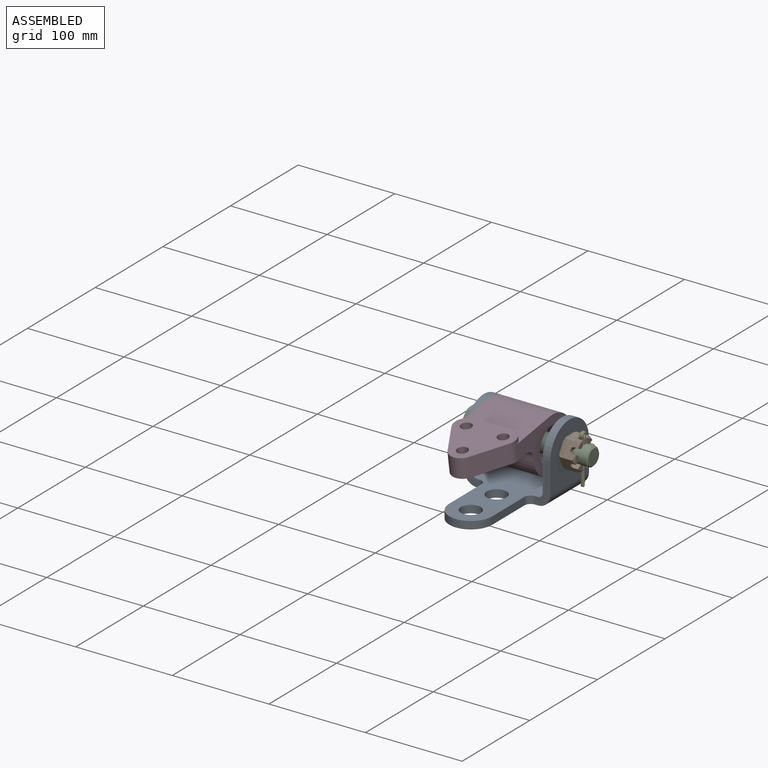
[diagram: assembled view]
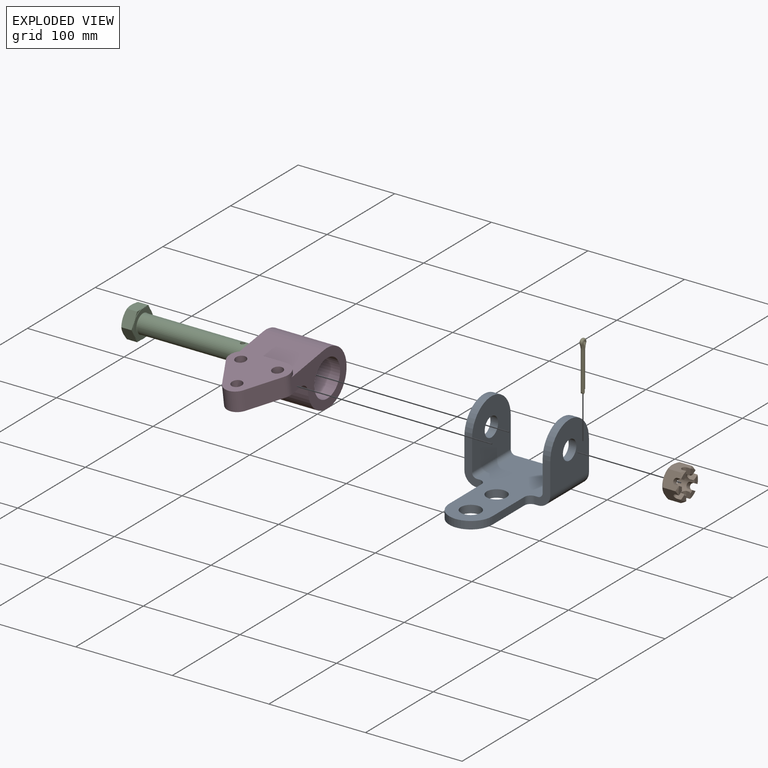
[diagram: exploded view]
GUIDED TOUR — MATED ASSEMBLY (Onshape document 77da3625cfaab442e1c85830, AutoMate assembly 77da3625cfaab442e1c85830_584f02aa23a0c990ece7a7c4_d7a465f249703bda8ea176b5_default)

This assembly has 5 components, labeled P0..P4 below (a component is one placed occurrence of a part; the same part can appear more than once), held together by 4 mates. A mate is a constraint between two components; its type names the relative motion it leaves free:
  FASTENED — locks the two components together rigidly (no relative motion),
  REVOLUTE — leaves rotation about the listed axis free (a hinge).
Axis/direction vectors are unit vectors and 'through' points are millimeter coordinates, both in the assembly's world frame.

MATES
  1. FASTENED "Fastened 1": P0 <-> P2, direction (-1.000, 0.000, 0.000) through (-114.11, -19.45, 6.69) mm
  2. REVOLUTE "Revolute 1": P3 <-> P0, axis (1.000, 0.000, 0.000) through (-106.18, -19.45, 6.69) mm
  3. FASTENED "Fastened 2": P1 <-> P0, direction (1.000, 0.000, 0.000) through (-25.21, -19.45, 6.69) mm
  4. FASTENED "Fastened 3": P4 <-> P2, direction (0.000, 0.000, -1.000) through (-11.43, -19.45, 16.33) mm

ASSEMBLY ORDER
  1. P0 — the base component [order verified]
  2. P3 [order verified]
  3. P1 [order verified]
  4. P2 [order verified]
  5. P4 [order verified]
Order-tag legend:
  [order verified] — this step's position reverses a verified removal order: the component was checked to insert without passing through the ones already placed.

Of the 5 components, 2 carry the full construction recipe — the FeatureScript program that regenerates the part's solid from scratch; the rest are supplied as boundary geometry only.
Each toured component is shown spotlighted twice — in the assembled view, then in the exploded view, where a leader line traces a displaced component back to its assembled socket (saturated green if recipe-attached, orange if geometry-only; every other component desaturated gray) — followed by its recipe or geometry summary and the mates that hold it.
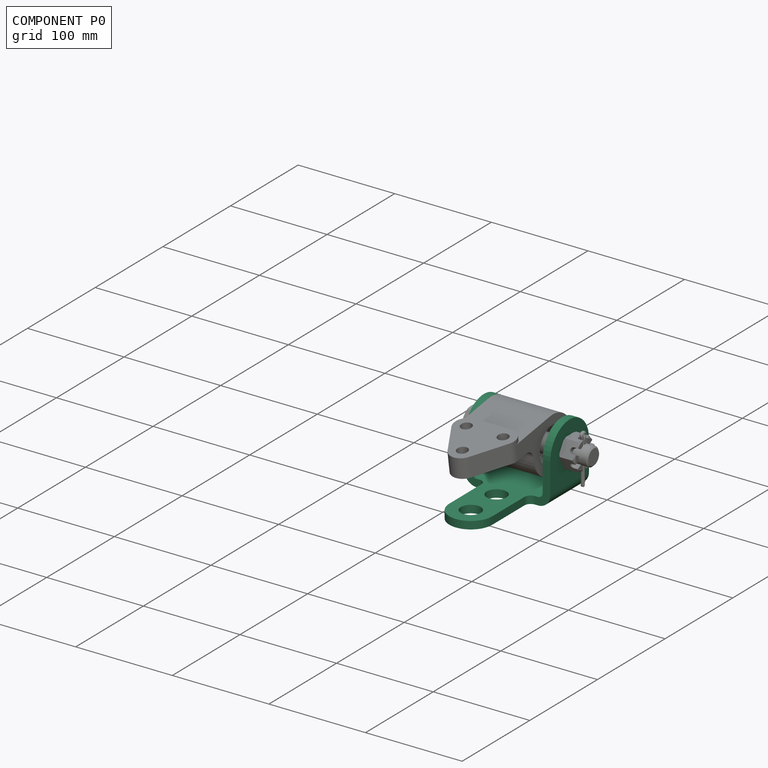
[diagram: component P0 — assembled]
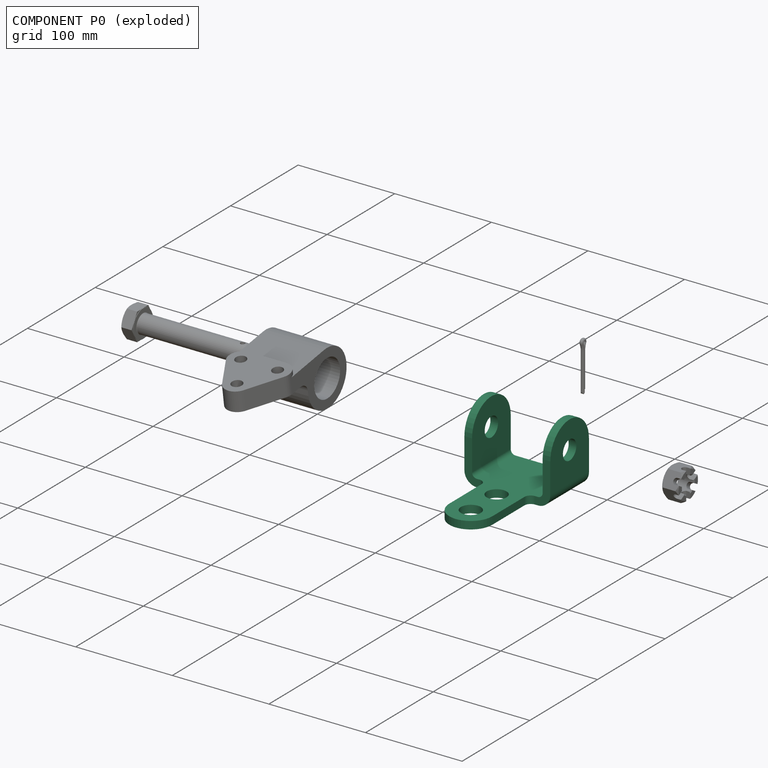
[diagram: component P0 — exploded]
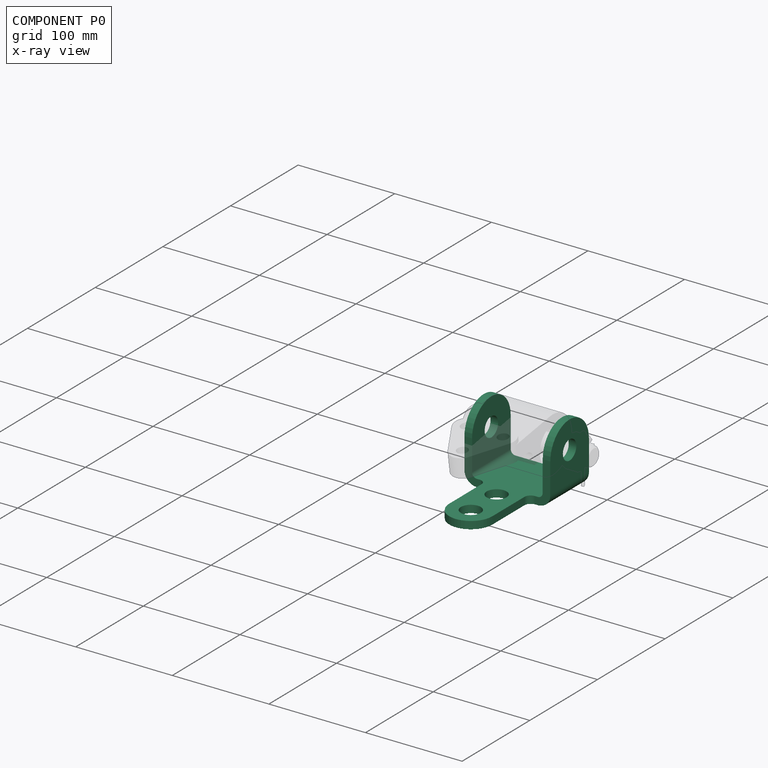
[diagram: component P0 — x-ray view]
COMPONENT P0 — recipe-attached (CADFS 00126189, mesh-verified: the recipe's output STEP matches this component's geometry to below the mesh-comparison resolution (tessellation chordal tolerance ~0.264 mm)).
Held by: FASTENED mate "Fastened 1" to P2; REVOLUTE mate "Revolute 1" to P3; FASTENED mate "Fastened 2" to P1.
Construction recipe (FeatureScript — the CAD program that rebuilds this solid; sketch coordinates are in the units given by the * unit suffixes, e.g. mm):

FeatureScript 1511;
import(path : "onshape/std/geometry.fs", version : "1511.0");
import(path : "onshape/std/common.fs", version : "1511.0");
const mm = millimeter;
const VERTEX = EntityType.VERTEX;
const EDGE = EntityType.EDGE;
const FACE = EntityType.FACE;
const BODY = EntityType.BODY;
function v(x, y){return vector(x, y);}
function OD(order){return orderDisambiguation(order);}
function OSD(set){return originalSetDisambiguation(set);}
function TD(topology){return topologyDisambiguation(topology);}
function TDD(query){return trueDependencyDisambiguation(query);}
function sQuery(a, b, c) {return sketchEntityQuery(a, b, c);}

annotation { "Feature Type Name" : "Feature", "Feature Type Description" : "" }
export const myFeature = defineFeature(function(context is Context, id is Id, definition is map)
    precondition{}
    {
        {
            var Q0;
            Q0=qCreatedBy(makeId("Front.planeOp"),FACE);
            var sketch = newSketch(context, id + "F0", { "sketchPlane" : qUnion([Q0])});
            skLineSegment(sketch, "E0", {"start": v(0, 0) * mm, "end": v(0, 44.45) * mm});
            skLineSegment(sketch, "E1", {"start": v(57.15, 44.45) * mm, "end": v(57.15, 0) * mm});
            skLineSegment(sketch, "E2", {"start": v(0, 0) * mm, "end": v(133.35, 0) * mm});
            skLineSegment(sketch, "E3", {"start": v(133.35, 0) * mm, "end": v(133.35, 7.94) * mm});
            skLineSegment(sketch, "E4", {"start": v(133.35, 7.94) * mm, "end": v(57.15, 7.94) * mm});
            skArc(sketch, "E5", {"start": v(57.15, 44.45) * mm, "mid": v(28.58, 73.03) * mm, "end": v(0, 44.45) * mm});
            skCircle(sketch, "E6", {"center": v(28.58, 44.45) * mm, "radius": 9.92 * mm});
            skSolve(sketch);
        }
        {
            var Q0;
            Q0 = qSketchRegion(id + "F0", true);
            extrude(context, id + "F1", {"entities" : qUnion([Q0]), "depth" : 88.9 * mm});
        }
        {
            var Q0;
            Q0=makeQuery(id+"F1.opExtrude","SWEPT_FACE",FACE,{"disambiguationData":[OSD([sQuery(id+"F0.wireOp",EDGE,"E4")])]});
            var sketch = newSketch(context, id + "F2", { "sketchPlane" : qUnion([Q0])});
            skCircle(sketch, "E7", {"center": v(73.03, -44.45) * mm, "radius": 10.33 * mm});
            skCircle(sketch, "E8", {"center": v(111.12, -44.45) * mm, "radius": 10.33 * mm});
            skLineSegment(sketch, "E9", {"start": v(57.15, 0) * mm, "end": v(57.15, -15.88) * mm});
            skLineSegment(sketch, "E10", {"start": v(57.15, -88.9) * mm, "end": v(57.15, -73.02) * mm});
            skArc(sketch, "E11", {"start": v(63.5, -66.67) * mm, "mid": v(59, -68.53) * mm, "end": v(57.15, -73.02) * mm});
            skArc(sketch, "E12", {"start": v(57.15, -15.88) * mm, "mid": v(59, -20.37) * mm, "end": v(63.5, -22.23) * mm});
            skLineSegment(sketch, "E13", {"start": v(63.5, -22.23) * mm, "end": v(111.13, -22.23) * mm});
            skLineSegment(sketch, "E14", {"start": v(63.5, -66.67) * mm, "end": v(111.13, -66.67) * mm});
            skArc(sketch, "E15", {"start": v(111.13, -66.68) * mm, "mid": v(133.35, -44.45) * mm, "end": v(111.13, -22.23) * mm});
            skLineSegment(sketch, "E16", {"start": v(57.15, 0) * mm, "end": v(133.35, 0) * mm});
            skLineSegment(sketch, "E17", {"start": v(57.15, -88.9) * mm, "end": v(133.35, -88.9) * mm});
            skLineSegment(sketch, "E18", {"start": v(57.15, -44.45) * mm, "end": v(194.7, -44.45) * mm, "construction": true});
            skPoint(sketch, "E18.endSnap0", {"position": v(133.35, -44.45) * mm});
            skLineSegment(sketch, "E19", {"start": v(133.35, 0) * mm, "end": v(133.35, -88.9) * mm});
            skSolve(sketch);
        }
        {
            var Q0;
            Q0 = qSketchRegion(id + "F2", true);
            extrude(context, id + "F3", {"entities" : qUnion([Q0]), "operationType" : NewBodyOperationType.REMOVE, "endBound" : BoundingType.THROUGH_ALL, "oppositeDirection" : true, "depth" : 25.4 * mm});
        }
        {
            var Q0;
            Q0=qCreatedBy(makeId("Right.planeOp"),FACE);
            var sketch = newSketch(context, id + "F4", { "sketchPlane" : qUnion([Q0])});
            skLineSegment(sketch, "E20", {"start": v(-80.96, 73.03) * mm, "end": v(-80.96, 12.7) * mm});
            skLineSegment(sketch, "E21", {"start": v(-76.2, 7.94) * mm, "end": v(-12.7, 7.94) * mm});
            skLineSegment(sketch, "E22", {"start": v(-7.94, 12.7) * mm, "end": v(-7.94, 73.03) * mm});
            skArc(sketch, "E23", {"start": v(-80.96, 12.7) * mm, "mid": v(-79.57, 9.33) * mm, "end": v(-76.2, 7.94) * mm});
            skArc(sketch, "E24", {"start": v(-12.7, 7.94) * mm, "mid": v(-9.33, 9.33) * mm, "end": v(-7.94, 12.7) * mm});
            skArc(sketch, "E25", {"start": v(-88.9, 12.7) * mm, "mid": v(-85.18, 3.72) * mm, "end": v(-76.2, 0) * mm});
            skLineSegment(sketch, "E26", {"start": v(-88.9, 12.7) * mm, "end": v(-88.9, 0) * mm});
            skLineSegment(sketch, "E27", {"start": v(-88.9, 0) * mm, "end": v(-76.2, 0) * mm});
            skLineSegment(sketch, "E28", {"start": v(-80.96, 73.03) * mm, "end": v(-7.94, 73.03) * mm});
            skLineSegment(sketch, "E29", {"start": v(0, 0) * mm, "end": v(0, 12.7) * mm});
            skLineSegment(sketch, "E30", {"start": v(0, 0) * mm, "end": v(-12.7, 0) * mm});
            skArc(sketch, "E31", {"start": v(-12.7, 0) * mm, "mid": v(-3.72, 3.72) * mm, "end": v(0, 12.7) * mm});
            skLineSegment(sketch, "E32", {"start": v(-44.45, 73.03) * mm, "end": v(-44.45, 0) * mm, "construction": true});
            skPoint(sketch, "E32.endSnap0", {"position": v(-44.45, 7.94) * mm});
            skSolve(sketch);
        }
        {
            var Q0;
            Q0 = qSketchRegion(id + "F4", true);
            extrude(context, id + "F5", {"entities" : qUnion([Q0]), "operationType" : NewBodyOperationType.REMOVE, "endBound" : BoundingType.THROUGH_ALL, "depth" : 25.4 * mm});
        }
    });
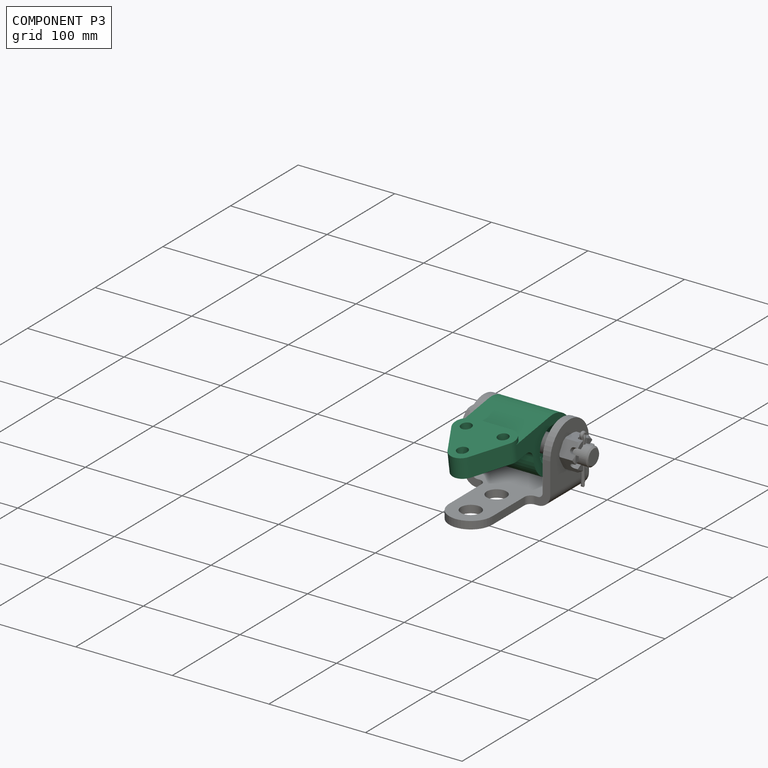
[diagram: component P3 — assembled]
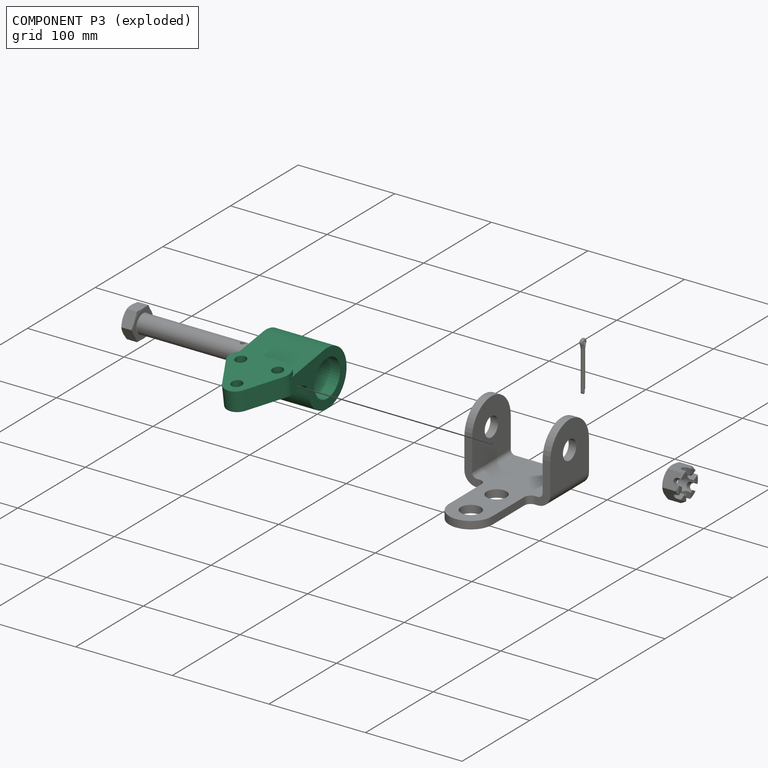
[diagram: component P3 — exploded]
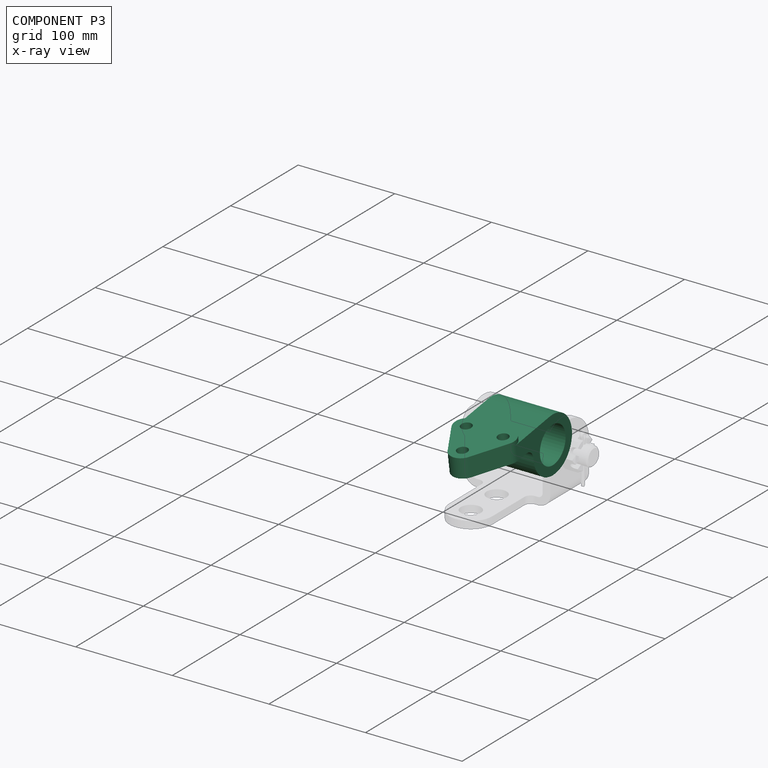
[diagram: component P3 — x-ray view]
COMPONENT P3 — recipe-attached (CADFS 00126190, mesh-verified: the recipe's output STEP matches this component's geometry to below the mesh-comparison resolution (tessellation chordal tolerance ~0.23 mm)).
Held by: REVOLUTE mate "Revolute 1" to P0.
Construction recipe (FeatureScript — the CAD program that rebuilds this solid; sketch coordinates are in the units given by the * unit suffixes, e.g. mm):

FeatureScript 1511;
import(path : "onshape/std/geometry.fs", version : "1511.0");
import(path : "onshape/std/common.fs", version : "1511.0");
const mm = millimeter;
const VERTEX = EntityType.VERTEX;
const EDGE = EntityType.EDGE;
const FACE = EntityType.FACE;
const BODY = EntityType.BODY;
function v(x, y){return vector(x, y);}
function OD(order){return orderDisambiguation(order);}
function OSD(set){return originalSetDisambiguation(set);}
function TD(topology){return topologyDisambiguation(topology);}
function TDD(query){return trueDependencyDisambiguation(query);}
function sQuery(a, b, c) {return sketchEntityQuery(a, b, c);}

annotation { "Feature Type Name" : "Feature", "Feature Type Description" : "" }
export const myFeature = defineFeature(function(context is Context, id is Id, definition is map)
    precondition{}
    {
        {
            var Q0;
            Q0=qCreatedBy(makeId("Front.planeOp"),FACE);
            var sketch = newSketch(context, id + "F0", { "sketchPlane" : qUnion([Q0])});
            skArc(sketch, "E0", {"start": v(0, 28.58) * mm, "mid": v(-19.35, -21.03) * mm, "end": v(28.48, 2.38) * mm});
            skArc(sketch, "E1", {"start": v(37.97, 12.7) * mm, "mid": v(30.96, 9.62) * mm, "end": v(28.48, 2.38) * mm});
            skLineSegment(sketch, "E2", {"start": v(0, 28.58) * mm, "end": v(38.1, 28.58) * mm});
            skCircle(sketch, "E3", {"center": v(0, 0) * mm, "radius": 19.05 * mm});
            skLineSegment(sketch, "E4", {"start": v(38.1, 28.58) * mm, "end": v(38.1, 33.35) * mm});
            skLineSegment(sketch, "E5", {"start": v(38.1, 33.35) * mm, "end": v(96.85, 33.35) * mm});
            skLineSegment(sketch, "E6", {"start": v(96.85, 33.35) * mm, "end": v(96.85, 12.7) * mm});
            skLineSegment(sketch, "E7", {"start": v(37.97, 12.7) * mm, "end": v(96.85, 12.7) * mm});
            skLineSegment(sketch, "E8", {"start": v(19.74, -20.66) * mm, "end": v(69.85, 12.7) * mm, "construction": true});
            skLineSegment(sketch, "E9", {"start": v(84.15, 12.7) * mm, "end": v(84.15, 33.35) * mm, "construction": true});
            skLineSegment(sketch, "E10", {"start": v(50.8, 12.7) * mm, "end": v(50.8, 33.35) * mm, "construction": true});
            skSolve(sketch);
        }
        {
            var Q0;
            Q0 = qSketchRegion(id + "F0", true);
            extrude(context, id + "F1", {"entities" : qUnion([Q0]), "depth" : 63.5 * mm});
        }
        {
            var Q0;
            Q0=makeQuery(id+"F1.opExtrude","SWEPT_FACE",FACE,{"disambiguationData":[OSD([sQuery(id+"F0.wireOp",EDGE,"E5")])]});
            var sketch = newSketch(context, id + "F2", { "sketchPlane" : qUnion([Q0])});
            skCircle(sketch, "E11", {"center": v(50.8, -12.7) * mm, "radius": 5.56 * mm});
            skCircle(sketch, "E12", {"center": v(50.8, -50.8) * mm, "radius": 5.56 * mm});
            skCircle(sketch, "E13", {"center": v(84.15, -31.75) * mm, "radius": 5.56 * mm});
            skLineSegment(sketch, "E14", {"start": v(96.85, -31.75) * mm, "end": v(-50.82, -31.75) * mm, "construction": true});
            skPoint(sketch, "E14.endSnap0", {"position": v(96.85, -31.75) * mm});
            skLineSegment(sketch, "E15", {"start": v(84.15, -87.19) * mm, "end": v(84.15, 6.07) * mm, "construction": true});
            skLineSegment(sketch, "E16", {"start": v(33.35, -98.65) * mm, "end": v(33.35, 81.53) * mm, "construction": true});
            skLineSegment(sketch, "E17", {"start": v(50.8, 11.94) * mm, "end": v(50.8, -91.8) * mm, "construction": true});
            skArc(sketch, "E18", {"start": v(90.45, -42.78) * mm, "mid": v(96.85, -31.75) * mm, "end": v(90.45, -20.72) * mm});
            skArc(sketch, "E19", {"start": v(57.1, -1.67) * mm, "mid": v(44.42, -1.72) * mm, "end": v(38.1, -12.7) * mm});
            skArc(sketch, "E20", {"start": v(38.1, -50.8) * mm, "mid": v(44.42, -61.78) * mm, "end": v(57.1, -61.83) * mm});
            skLineSegment(sketch, "E21", {"start": v(57.1, -1.67) * mm, "end": v(90.45, -20.72) * mm});
            skLineSegment(sketch, "E22", {"start": v(90.45, -42.78) * mm, "end": v(57.1, -61.83) * mm});
            skLineSegment(sketch, "E23", {"start": v(38.1, -50.8) * mm, "end": v(38.1, -12.7) * mm});
            skSolve(sketch);
        }
        {
            var Q0;
            Q0=makeQuery(id+"F2.imprint","IMPRINT",FACE,{"disambiguationData":[TD([[makeQuery(id+"F2.imprint","IMPRINT",EDGE,{"derivedFrom":sQuery(id+"F2.wireOp",EDGE,"E12")}),1.0]])]});
            var Q1;
            Q1=makeQuery(id+"F2.imprint","IMPRINT",FACE,{"disambiguationData":[TD([[makeQuery(id+"F2.imprint","IMPRINT",EDGE,{"derivedFrom":sQuery(id+"F2.wireOp",EDGE,"E11")}),1.0]])]});
            var Q2;
            Q2=makeQuery(id+"F2.imprint","IMPRINT",FACE,{"disambiguationData":[TD([[makeQuery(id+"F2.imprint","IMPRINT",EDGE,{"derivedFrom":sQuery(id+"F2.wireOp",EDGE,"E13")}),1.0]])]});
            extrude(context, id + "F3", {"entities" : qUnion([Q0, Q1, Q2]), "operationType" : NewBodyOperationType.REMOVE, "endBound" : BoundingType.THROUGH_ALL, "oppositeDirection" : true, "depth" : 25.4 * mm});
        }
        {
            var Q0;
            {var subQ0=sQuery(id+"F2.wireOp",EDGE,"E19");var subQ1=sQuery(id+"F0.wireOp",EDGE,"E5");var subQ4=makeQuery(id+"F1.opExtrude","CAP_EDGE",EDGE,{"disambiguationData":[OSD([subQ1])],"isStart":true});var subQ5=makeQuery(id+"F2.imprint","INTERSECT",VERTEX,{"derivedFrom":[subQ4,subQ0]});Q0=makeQuery(id+"F2.imprint","IMPRINT",FACE,{"disambiguationData":[TD([[makeQuery(id+"F2.imprint","IMPRINT",EDGE,{"disambiguationData":[TD([[subQ5,1.0]])],"derivedFrom":subQ4}),-1.0]])]});}
            var Q1;
            {var subQ0=sQuery(id+"F2.wireOp",EDGE,"E20");var subQ1=sQuery(id+"F0.wireOp",EDGE,"E5");var subQ4=makeQuery(id+"F1.opExtrude","CAP_EDGE",EDGE,{"disambiguationData":[OSD([subQ1])],"isStart":false});var subQ5=makeQuery(id+"F2.imprint","INTERSECT",VERTEX,{"derivedFrom":[subQ4,subQ0]});Q1=makeQuery(id+"F2.imprint","IMPRINT",FACE,{"disambiguationData":[TD([[makeQuery(id+"F2.imprint","IMPRINT",EDGE,{"disambiguationData":[TD([[subQ5,1.0]])],"derivedFrom":subQ4}),1.0]])]});}
            extrude(context, id + "F4", {"entities" : qUnion([Q0, Q1]), "operationType" : NewBodyOperationType.REMOVE, "oppositeDirection" : true, "depth" : 4.78 * mm});
        }
        {
            var Q0;
            {var subQ6=sQuery(id+"F2.wireOp",EDGE,"E22");Q0=makeQuery(id+"F2.imprint","IMPRINT",FACE,{"disambiguationData":[TD([[makeQuery(id+"F2.imprint","IMPRINT",EDGE,{"derivedFrom":subQ6}),1.0]])]});}
            var Q1;
            {var subQ0=sQuery(id+"F2.wireOp",EDGE,"E21");Q1=makeQuery(id+"F2.imprint","IMPRINT",FACE,{"disambiguationData":[TD([[makeQuery(id+"F2.imprint","IMPRINT",EDGE,{"derivedFrom":subQ0}),1.0]])]});}
            extrude(context, id + "F5", {"entities" : qUnion([Q0, Q1]), "operationType" : NewBodyOperationType.REMOVE, "endBound" : BoundingType.THROUGH_ALL, "oppositeDirection" : true, "depth" : 25.4 * mm});
        }
    });
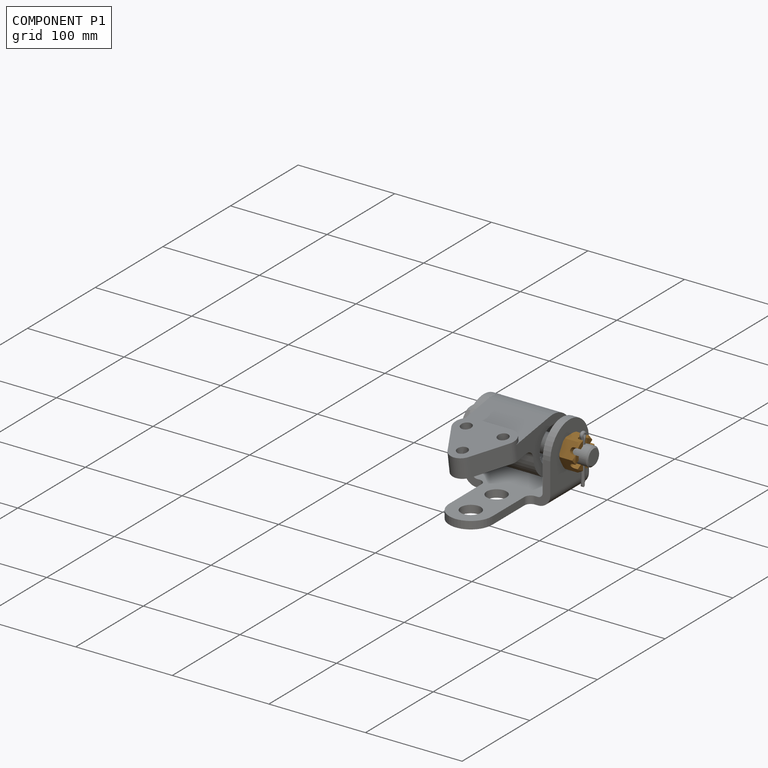
[diagram: component P1 — assembled]
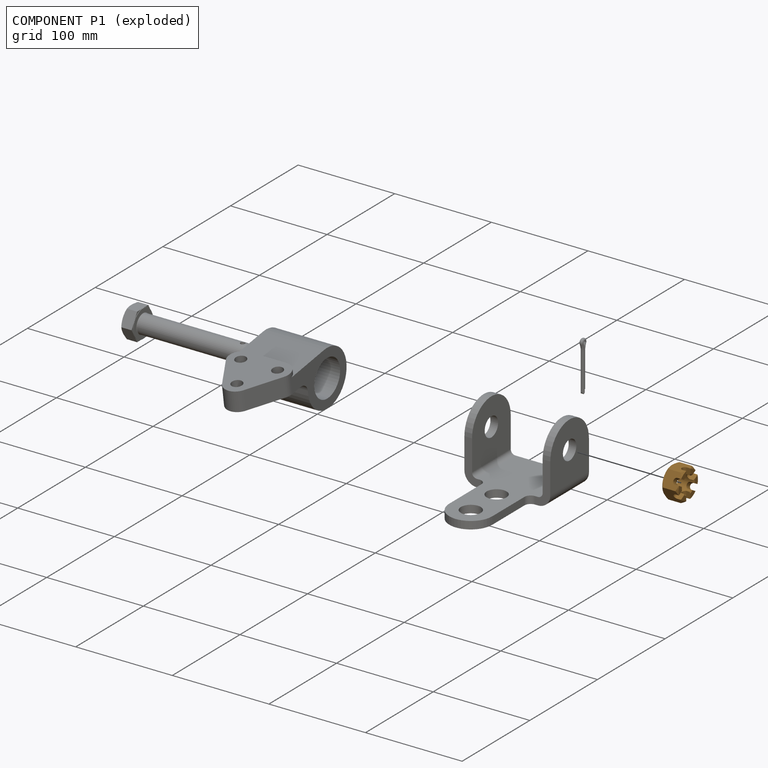
[diagram: component P1 — exploded]
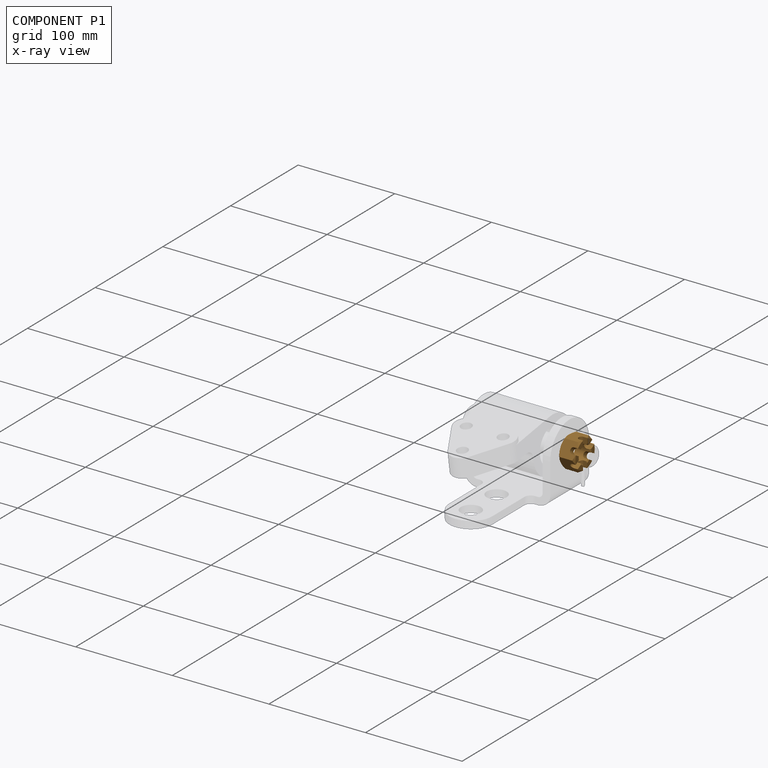
[diagram: component P1 — x-ray view]
COMPONENT P1 — geometry summary (no construction recipe available for this part):
  bounding box: 33.0 x 33.0 x 16.9 mm
  B-rep topology: 1 solid, 64 faces, 364 edges
  volume: 6784 mm^3 (37% of its bounding box)
  symmetry: 6-fold rotationally symmetric about the z axis; mirror-symmetric across its x mid-plane, y mid-plane
Held by: FASTENED mate "Fastened 2" to P0.
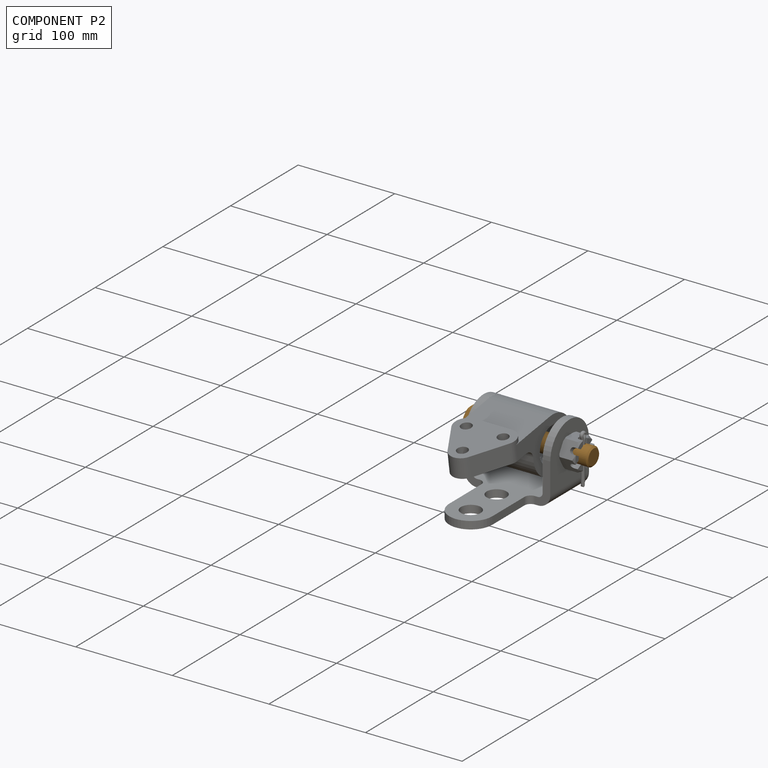
[diagram: component P2 — assembled]
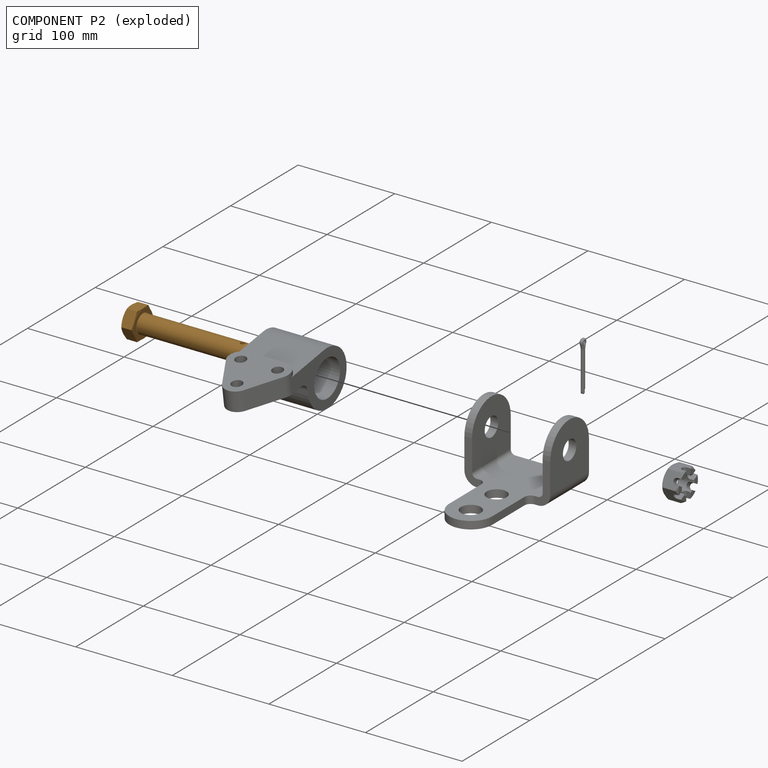
[diagram: component P2 — exploded]
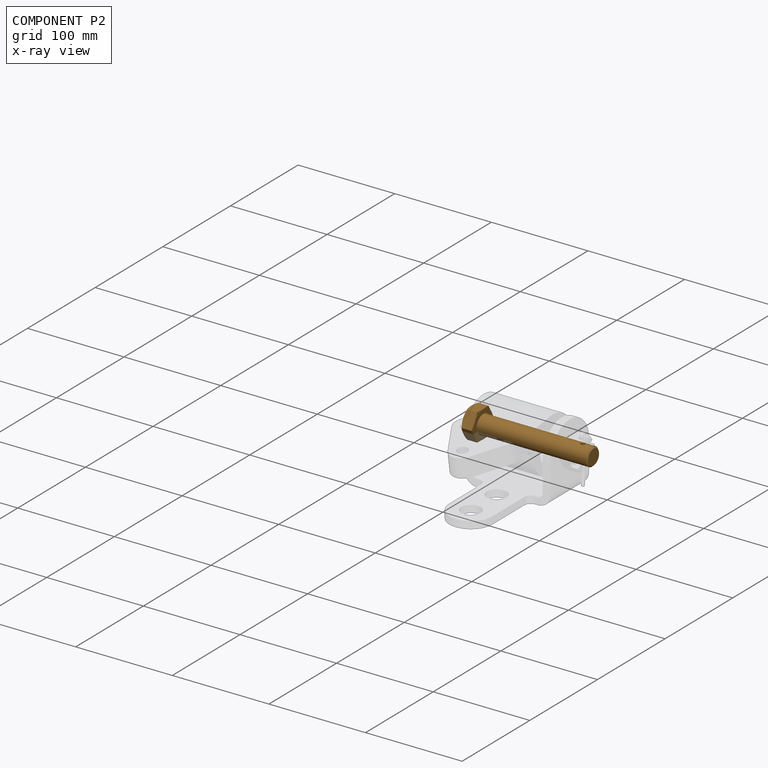
[diagram: component P2 — x-ray view]
COMPONENT P2 — geometry summary (no construction recipe available for this part):
  bounding box: 126.6 x 33.0 x 33.0 mm
  B-rep topology: 1 solid, 26 faces, 114 edges
  volume: 40801 mm^3 (30% of its bounding box)
  symmetry: 2-fold rotationally symmetric about the x axis; mirror-symmetric across its y mid-plane, z mid-plane
Held by: FASTENED mate "Fastened 1" to P0; FASTENED mate "Fastened 3" to P4.
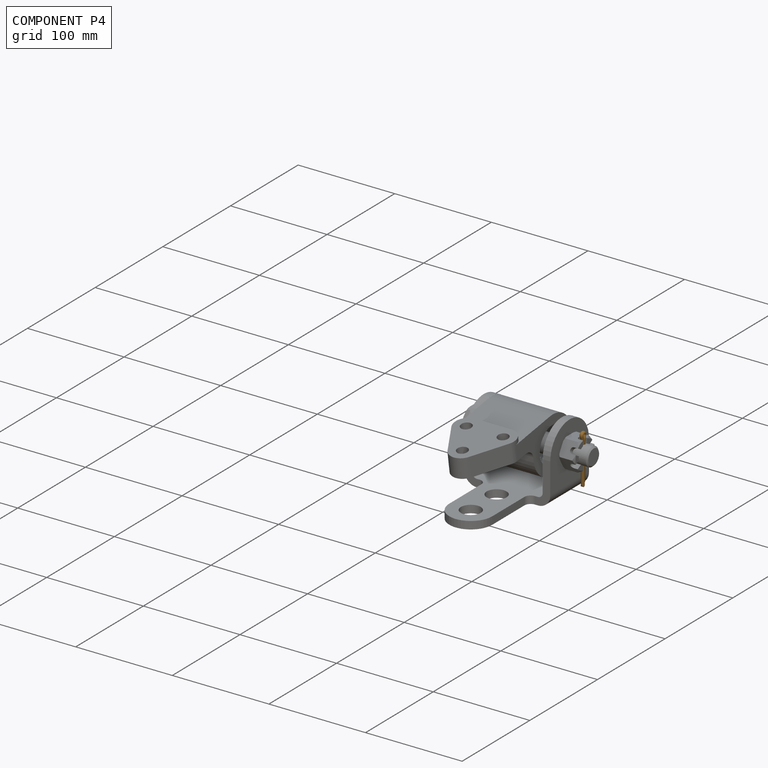
[diagram: component P4 — assembled]
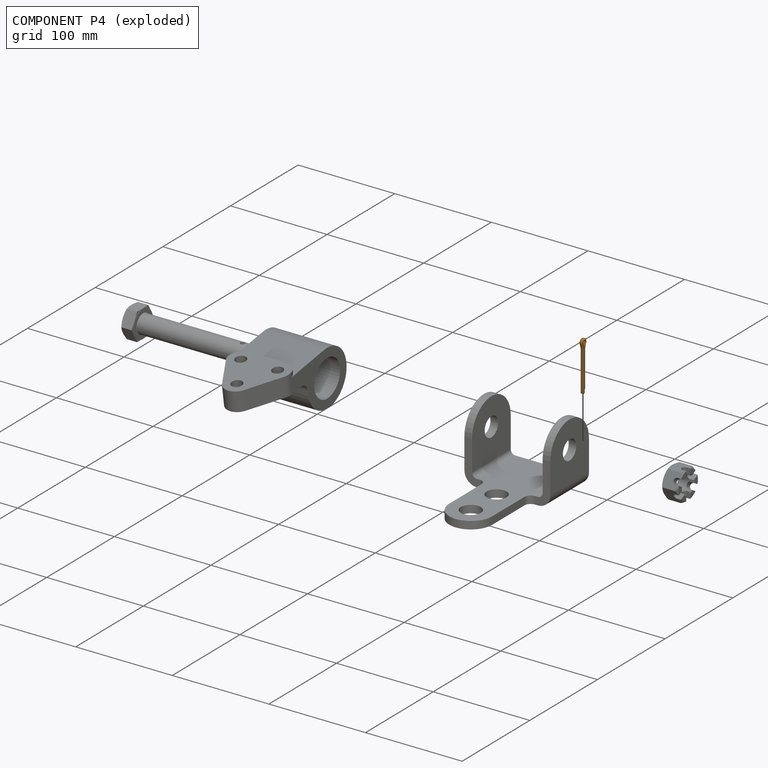
[diagram: component P4 — exploded]
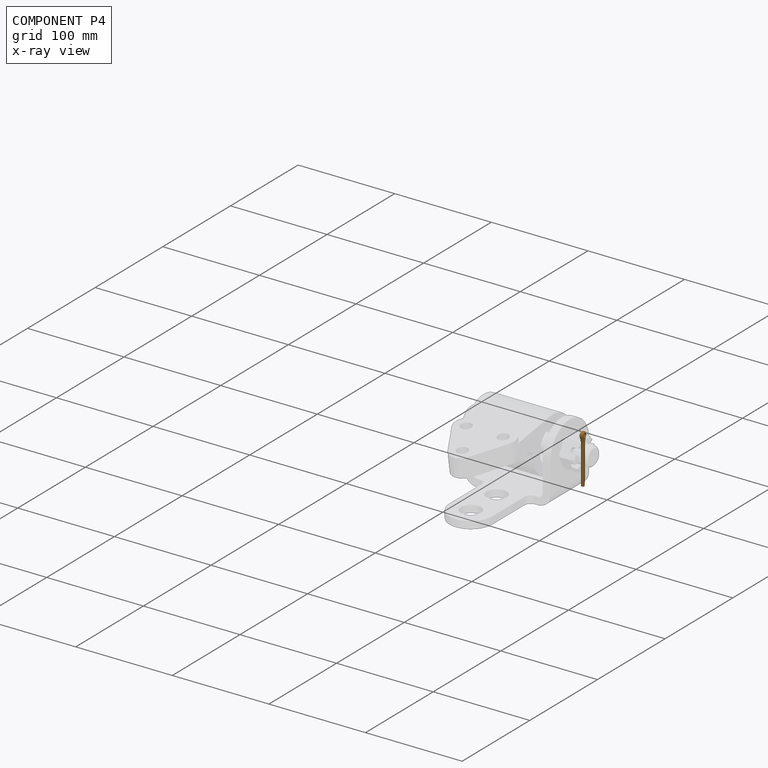
[diagram: component P4 — x-ray view]
COMPONENT P4 — geometry summary (no construction recipe available for this part):
  bounding box: 52.0 x 8.0 x 3.7 mm
  B-rep topology: 1 solid, 14 faces, 56 edges
  volume: 535 mm^3 (35% of its bounding box)
  symmetry: mirror-symmetric across its z mid-plane
Held by: FASTENED mate "Fastened 3" to P2.
PROVENANCE & LICENSES
Assembly (occurrences, transforms, mates, per-part STEP geometry): AutoMate dataset, Zenodo record 7776208, CC0.
Construction recipes: CADFS (HuggingFace VladPyatov/CADFS, CC-BY-4.0, layered over the ABC dataset), FeatureScript reconstruction programs keyed by ABC model id.
Join: ABC meta listings map ABC model id -> Onshape documentId; within a shared document, parts are matched by geometric signature (bounding-box dims + volume at 0.1% relative tolerance, exact B-rep face/solid counts).
Verification: 2 of this assembly's 5 components carry a recipe attachment, and every attachment is mesh-verified: the CADFS STEP and the AutoMate member STEP were compared as meshes in their shared local frame (symmetric sampled-point-to-mesh distance); worst across the 2 attachments: below the mesh-comparison resolution (tessellation chordal tolerance ~0.264 mm) on a 176 mm part.
Renders: orthographic iso camera (az 35 / el 25); the floor grid conveys scale (grid pitch printed in each image; no ruler). In the exploded view each component is displaced by its stored offset vector: the offsets alone carry the explosion direction (mate normal/axis signs are not orientation cues and do not encode it), and separation distances are assigned per mate-chain, not proportionally to assembly-order depth.
